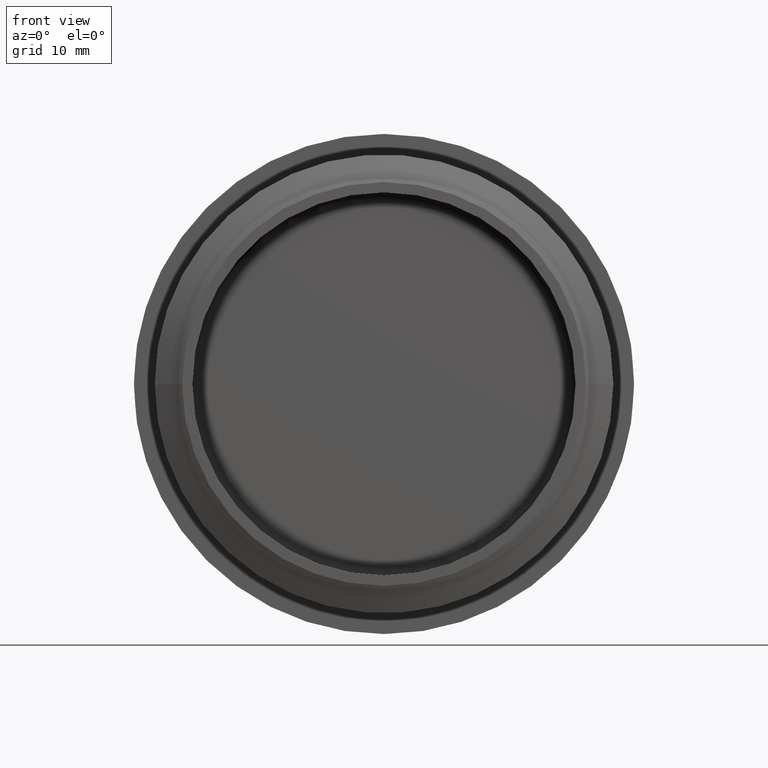
[diagram: clean part render]
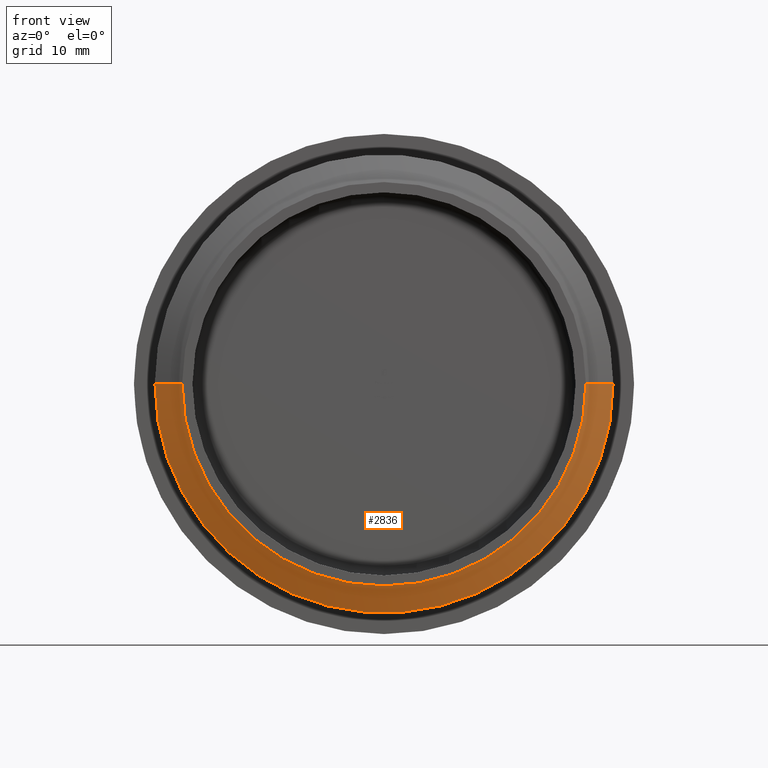
[diagram: same view with one face highlighted and labeled with its STEP entity id]
A machine part, front view. The second image highlights one B-rep face of the part: STEP entity #2836.
In plain terms, the highlighted conical surface has half-angle 65.316 deg.
Its self-contained STEP definition (entity closure, byte-faithful):
#413 = ORIENTED_EDGE ( 'NONE', *, *, #2658, .F. ) ;
#700 = DIRECTION ( 'NONE',  ( -1.000000000000000000, -1.047506098955225762E-14, 0.000000000000000000 ) ) ;
#787 = EDGE_CURVE ( 'NONE', #10064, #9503, #11349, .T. ) ;
#1344 = AXIS2_PLACEMENT_3D ( 'NONE', #10816, #10899, #8727 ) ;
#1405 = CIRCLE ( 'NONE', #5657, 22.12088045224080446 ) ;
#1715 = CARTESIAN_POINT ( 'NONE',  ( 19.50000000000008171, 1.300000000000000044, 2.388061258337350772E-15 ) ) ;
#1876 = ORIENTED_EDGE ( 'NONE', *, *, #6642, .T. ) ;
#2445 = VECTOR ( 'NONE', #11264, 1000.000000000000227 ) ;
#2658 = EDGE_CURVE ( 'NONE', #5487, #5106, #11977, .T. ) ;
#2729 = CARTESIAN_POINT ( 'NONE',  ( -1.361677722148561053E-14, 1.299999999999750910, 0.000000000000000000 ) ) ;
#2836 = ADVANCED_FACE ( 'NONE', ( #6383 ), #3474, .T. ) ;
#3103 = EDGE_CURVE ( 'NONE', #9503, #7402, #9125, .T. ) ;
#3474 = CONICAL_SURFACE ( 'NONE', #1344, 19.50000000000009592, 1.139983996948041645 ) ;
#3564 = ORIENTED_EDGE ( 'NONE', *, *, #3103, .T. ) ;
#4045 = DIRECTION ( 'NONE',  ( 1.000000000000000000, 1.046909432664306779E-14, 0.000000000000000000 ) ) ;
#4688 = CARTESIAN_POINT ( 'NONE',  ( 0.000000000000000000, 1.299999999999750910, -19.50000000000000000 ) ) ;
#5106 = VERTEX_POINT ( 'NONE', #6822 ) ;
#5256 = DIRECTION ( 'NONE',  ( -1.047444401652940007E-14, 1.000000000000000000, 0.000000000000000000 ) ) ;
#5487 = VERTEX_POINT ( 'NONE', #6153 ) ;
#5545 = VECTOR ( 'NONE', #11592, 1000.000000000000227 ) ;
#5657 = AXIS2_PLACEMENT_3D ( 'NONE', #12770, #10619, #4045 ) ;
#6153 = CARTESIAN_POINT ( 'NONE',  ( 19.49999999999998579, 1.299999999999955191, 2.548543901176567384E-15 ) ) ;
#6169 = ORIENTED_EDGE ( 'NONE', *, *, #8250, .T. ) ;
#6259 = EDGE_LOOP ( 'NONE', ( #413, #1876, #7507, #3564, #6169 ) ) ;
#6383 = FACE_OUTER_BOUND ( 'NONE', #6259, .T. ) ;
#6642 = EDGE_CURVE ( 'NONE', #5487, #10064, #10435, .T. ) ;
#6822 = CARTESIAN_POINT ( 'NONE',  ( 22.12088045224077604, 2.504568659339373227, 2.709026544015795435E-15 ) ) ;
#7355 = AXIS2_PLACEMENT_3D ( 'NONE', #11735, #5256, #13294 ) ;
#7402 = VERTEX_POINT ( 'NONE', #8655 ) ;
#7507 = ORIENTED_EDGE ( 'NONE', *, *, #787, .T. ) ;
#8241 = DIRECTION ( 'NONE',  ( -1.047444401652940007E-14, 1.000000000000000000, 0.000000000000000000 ) ) ;
#8250 = EDGE_CURVE ( 'NONE', #7402, #5106, #1405, .T. ) ;
#8387 = CARTESIAN_POINT ( 'NONE',  ( -19.50000000000011013, 1.299999999999591482, 0.000000000000000000 ) ) ;
#8655 = CARTESIAN_POINT ( 'NONE',  ( -22.12088045224082933, 2.504568659338910486, 0.000000000000000000 ) ) ;
#8727 = DIRECTION ( 'NONE',  ( -1.000000000000000000, -1.047506098955220713E-14, 0.000000000000000000 ) ) ;
#9125 = LINE ( 'NONE', #8387, #5545 ) ;
#9503 = VERTEX_POINT ( 'NONE', #11813 ) ;
#10064 = VERTEX_POINT ( 'NONE', #4688 ) ;
#10435 = CIRCLE ( 'NONE', #7355, 19.50000000000000000 ) ;
#10619 = DIRECTION ( 'NONE',  ( 1.047444401652940007E-14, -1.000000000000000000, -0.000000000000000000 ) ) ;
#10816 = CARTESIAN_POINT ( 'NONE',  ( -1.361677722148607912E-14, 1.299999999999795763, 0.000000000000000000 ) ) ;
#10899 = DIRECTION ( 'NONE',  ( -1.047444401652940007E-14, 1.000000000000000000, 0.000000000000000000 ) ) ;
#11264 = DIRECTION ( 'NONE',  ( 0.9086268132129853292, 0.4176090448139439526, 1.112746918420747700E-16 ) ) ;
#11349 = CIRCLE ( 'NONE', #12584, 19.50000000000000000 ) ;
#11592 = DIRECTION ( 'NONE',  ( -0.9086268132129939890, 0.4176090448139249678, 0.000000000000000000 ) ) ;
#11735 = CARTESIAN_POINT ( 'NONE',  ( -1.361677722148561053E-14, 1.299999999999750910, 0.000000000000000000 ) ) ;
#11813 = CARTESIAN_POINT ( 'NONE',  ( -19.50000000000001421, 1.299999999999546851, 0.000000000000000000 ) ) ;
#11977 = LINE ( 'NONE', #1715, #2445 ) ;
#12584 = AXIS2_PLACEMENT_3D ( 'NONE', #2729, #8241, #700 ) ;
#12770 = CARTESIAN_POINT ( 'NONE',  ( -2.623396420780193695E-14, 2.504568659339141856, 0.000000000000000000 ) ) ;
#13294 = DIRECTION ( 'NONE',  ( -1.000000000000000000, -1.047506098955225762E-14, 0.000000000000000000 ) ) ;